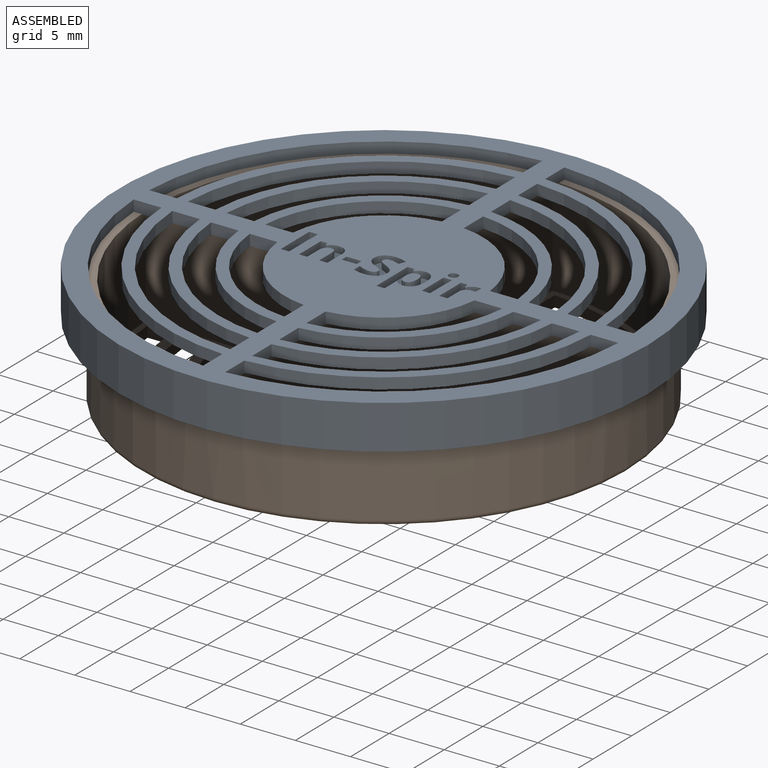
[diagram: assembled view]
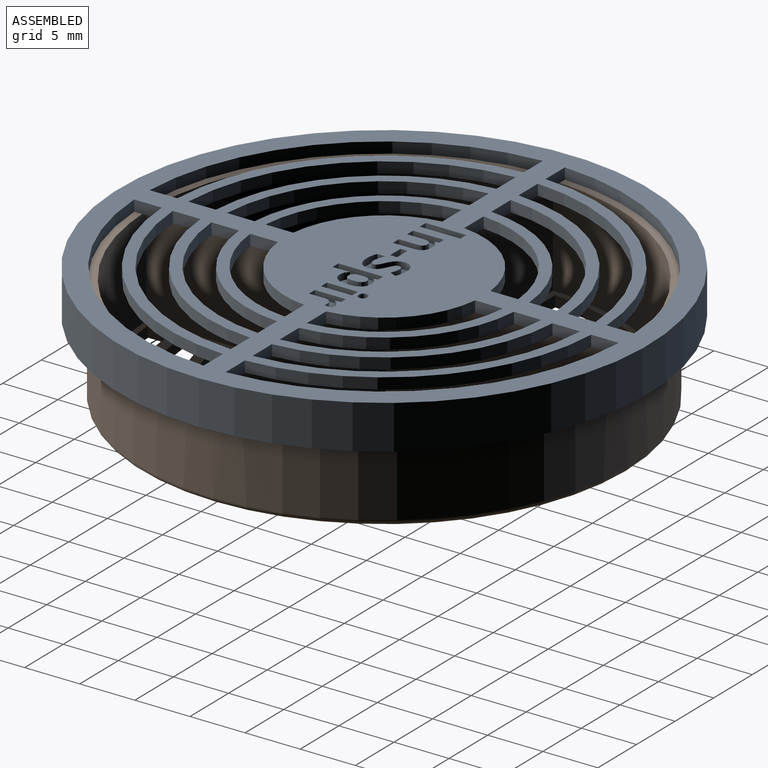
[diagram: assembled view, second angle]
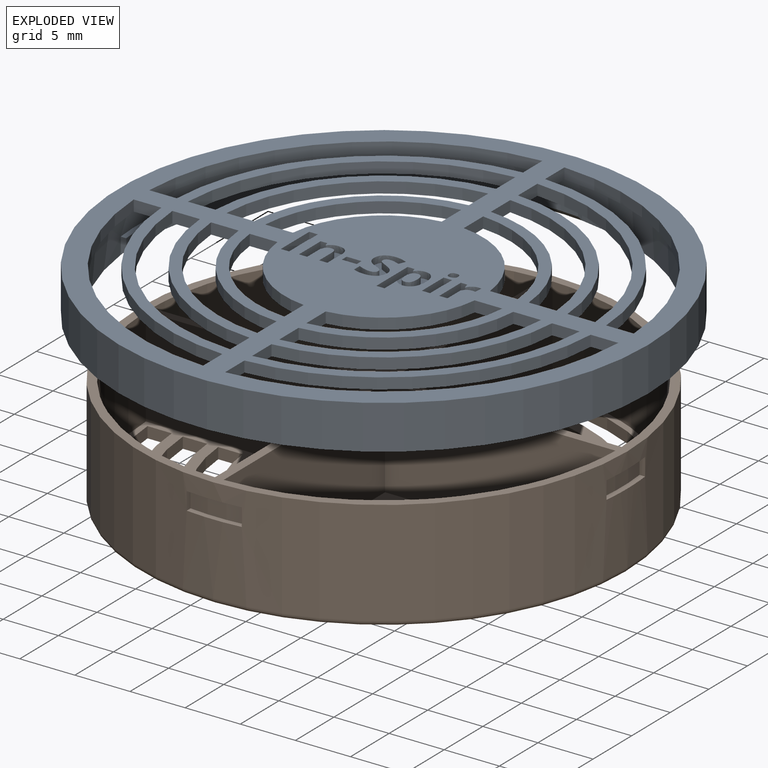
[diagram: exploded view]
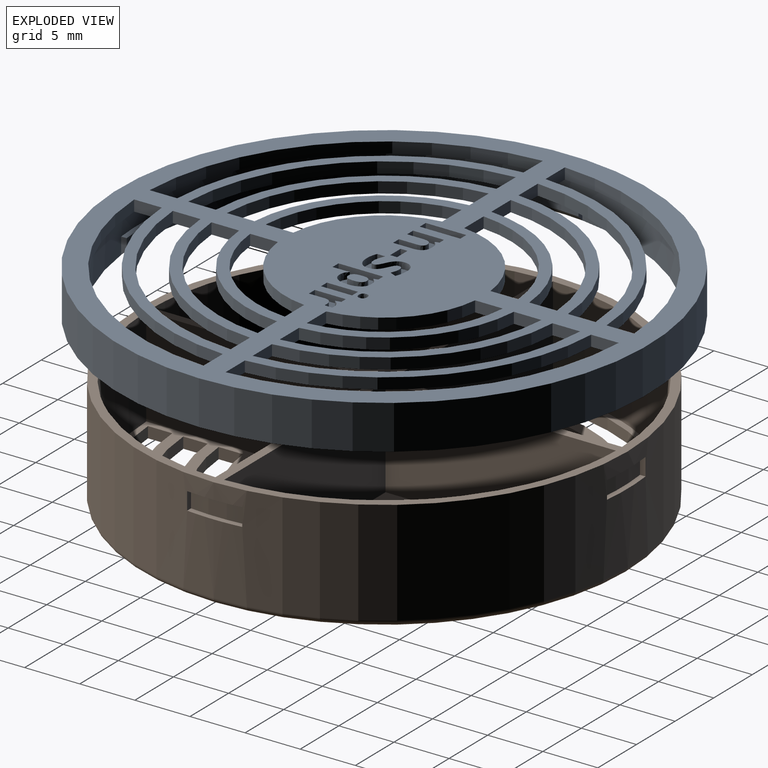
[diagram: exploded view, second angle]
ASSEMBLY  parts=2 mates=2
PART A: 196 faces, bbox 48x48x4 mm
  f0: cylinder r=22.25mm len=44.5mm, axis (0,0,1), area 389.3mm2, adj f2,f4,f176,f178,f179,f180,f182,f183
  f1: plane 48x48mm, normal (0,0,1), area 888.8mm2, adj f3,f5,f6,f7,f8,f9,f10,f11
  f2: plane 44.5x44.5mm, normal (0,0,-1), area 661.5mm2, adj f0,f5,f6,f7,f8,f9,f10,f11
  f3: cylinder r=24mm len=48mm, axis (0,0,-1), area 603.2mm2, adj f1,f4
  f4: plane 48x48mm, normal (0,0,-1), area 254.3mm2, adj f0,f3,f192,f193,f194,f195
  f5: plane 2.5x1mm, normal (-1,0,0), area 2.5mm2, adj f1,f2,f6,f8
  f6: cylinder r=22mm len=20.98mm, axis (0,0,1), area 32.6mm2, adj f1,f2,f5,f7
  f7: plane 2.5x1mm, normal (0,1,0), area 2.5mm2, adj f1,f2,f6,f8
  f8: cylinder r=19.5mm len=18.47mm, axis (0,0,1), area 28.6mm2, adj f1,f2,f5,f7
  f9: plane 2.51x1mm, normal (-1,0,0), area 2.5mm2, adj f1,f2,f10,f12
  f10: cylinder r=12.5mm len=11.46mm, axis (0,0,1), area 17.6mm2, adj f1,f2,f9,f11
  f11: plane 2.51x1mm, normal (0,-1,0), area 2.5mm2, adj f1,f2,f10,f12
  f12: cylinder r=15mm len=13.97mm, axis (0,0,1), area 21.6mm2, adj f1,f2,f9,f11
  f13: cylinder r=9mm len=7.94mm, axis (0,0,1), area 12.1mm2, adj f1,f2,f14,f16
  f14: plane 2.51x1mm, normal (1,0,0), area 2.5mm2, adj f1,f2,f13,f15
  f15: cylinder r=11.5mm len=10.46mm, axis (0,0,1), area 16.1mm2, adj f1,f2,f14,f16
  f16: plane 2.51x1mm, normal (0,-1,0), area 2.5mm2, adj f1,f2,f13,f15
  f17: cylinder r=16mm len=14.97mm, axis (0,0,1), area 23.1mm2, adj f1,f2,f18,f20
  f18: plane 2.5x1mm, normal (1,0,0), area 2.5mm2, adj f1,f2,f17,f19
  f19: cylinder r=18.5mm len=17.47mm, axis (0,0,1), area 27.1mm2, adj f1,f2,f18,f20
  f20: plane 2.5x1mm, normal (0,-1,0), area 2.5mm2, adj f1,f2,f17,f19
  f21: cylinder r=12.5mm len=11.46mm, axis (0,0,1), area 17.6mm2, adj f1,f2,f22,f24
  f22: plane 2.51x1mm, normal (1,0,0), area 2.5mm2, adj f1,f2,f21,f23
  f23: cylinder r=15mm len=13.97mm, axis (0,0,1), area 21.6mm2, adj f1,f2,f22,f24
  f24: plane 2.51x1mm, normal (0,-1,0), area 2.5mm2, adj f1,f2,f21,f23
  f25: plane 2.5x1mm, normal (-1,0,0), area 2.5mm2, adj f1,f2,f26,f28
  f26: cylinder r=16mm len=14.97mm, axis (0,0,1), area 23.1mm2, adj f1,f2,f25,f27
  f27: plane 2.5x1mm, normal (0,-1,0), area 2.5mm2, adj f1,f2,f26,f28
  f28: cylinder r=18.5mm len=17.47mm, axis (0,0,1), area 27.1mm2, adj f1,f2,f25,f27
  f29: plane 2.5x1mm, normal (-1,0,0), area 2.5mm2, adj f1,f2,f30,f32
  f30: cylinder r=19.5mm len=18.47mm, axis (0,0,1), area 28.6mm2, adj f1,f2,f29,f31
  f31: plane 2.5x1mm, normal (0,-1,0), area 2.5mm2, adj f1,f2,f30,f32
  f32: cylinder r=22mm len=20.98mm, axis (0,0,1), area 32.6mm2, adj f1,f2,f29,f31
  f33: plane 2.51x1mm, normal (-1,0,0), area 2.5mm2, adj f1,f2,f34,f36
  f34: cylinder r=9mm len=7.94mm, axis (0,0,1), area 12.1mm2, adj f1,f2,f33,f35
  f35: plane 2.51x1mm, normal (0,-1,0), area 2.5mm2, adj f1,f2,f34,f36
  f36: cylinder r=11.5mm len=10.46mm, axis (0,0,1), area 16.1mm2, adj f1,f2,f33,f35
  f37: cylinder r=11.5mm len=10.46mm, axis (0,0,1), area 16.1mm2, adj f1,f2,f38,f40
  f38: plane 2.51x1mm, normal (1,0,0), area 2.5mm2, adj f1,f2,f37,f39
  f39: cylinder r=9mm len=7.94mm, axis (0,0,1), area 12.1mm2, adj f1,f2,f38,f40
  f40: plane 2.51x1mm, normal (0,1,0), area 2.5mm2, adj f1,f2,f37,f39
  f41: plane 2.51x1mm, normal (-1,0,0), area 2.5mm2, adj f1,f2,f42,f44
  f42: cylinder r=11.5mm len=10.46mm, axis (0,0,1), area 16.1mm2, adj f1,f2,f41,f43
  f43: plane 2.51x1mm, normal (0,1,0), area 2.5mm2, adj f1,f2,f42,f44
  f44: cylinder r=9mm len=7.94mm, axis (0,0,1), area 12.1mm2, adj f1,f2,f41,f43
  f45: plane 2.5x1mm, normal (-1,0,0), area 2.5mm2, adj f1,f2,f46,f48
  f46: cylinder r=18.5mm len=17.47mm, axis (0,0,1), area 27.1mm2, adj f1,f2,f45,f47
  f47: plane 2.5x1mm, normal (0,1,0), area 2.5mm2, adj f1,f2,f46,f48
  f48: cylinder r=16mm len=14.97mm, axis (0,0,1), area 23.1mm2, adj f1,f2,f45,f47
  f49: plane 2.51x1mm, normal (-1,0,0), area 2.5mm2, adj f1,f2,f50,f52
  f50: cylinder r=15mm len=13.97mm, axis (0,0,1), area 21.6mm2, adj f1,f2,f49,f51
  f51: plane 2.51x1mm, normal (0,1,0), area 2.5mm2, adj f1,f2,f50,f52
  f52: cylinder r=12.5mm len=11.46mm, axis (0,0,1), area 17.6mm2, adj f1,f2,f49,f51
  f53: cylinder r=19.5mm len=18.47mm, axis (0,0,1), area 28.6mm2, adj f1,f2,f54,f56
  f54: plane 2.5x1mm, normal (1,0,0), area 2.5mm2, adj f1,f2,f53,f55
  f55: cylinder r=22mm len=20.98mm, axis (0,0,1), area 32.6mm2, adj f1,f2,f54,f56
  f56: plane 2.5x1mm, normal (0,-1,0), area 2.5mm2, adj f1,f2,f53,f55
  f57: cylinder r=22mm len=20.98mm, axis (0,0,1), area 32.6mm2, adj f1,f2,f58,f60
  f58: plane 2.5x1mm, normal (1,0,0), area 2.5mm2, adj f1,f2,f57,f59
  f59: cylinder r=19.5mm len=18.47mm, axis (0,0,1), area 28.6mm2, adj f1,f2,f58,f60
  f60: plane 2.5x1mm, normal (0,1,0), area 2.5mm2, adj f1,f2,f57,f59
  f61: cylinder r=15mm len=13.97mm, axis (0,0,1), area 21.6mm2, adj f1,f2,f62,f64
  f62: plane 2.51x1mm, normal (1,0,0), area 2.5mm2, adj f1,f2,f61,f63
  f63: cylinder r=12.5mm len=11.46mm, axis (0,0,1), area 17.6mm2, adj f1,f2,f62,f64
  f64: plane 2.51x1mm, normal (0,1,0), area 2.5mm2, adj f1,f2,f61,f63
  f65: cylinder r=18.5mm len=17.47mm, axis (0,0,1), area 27.1mm2, adj f1,f2,f66,f68
  f66: plane 2.5x1mm, normal (1,0,0), area 2.5mm2, adj f1,f2,f65,f67
  f67: cylinder r=16mm len=14.97mm, axis (0,0,1), area 23.1mm2, adj f1,f2,f66,f68
  f68: plane 2.5x1mm, normal (0,1,0), area 2.5mm2, adj f1,f2,f65,f67
  f69: plane 0.77x0.6mm, normal (0,1,0), area 0.5mm2, adj f1,f70,f85,f86
  f70: plane 1.84x0.6mm, normal (-1,0,0), area 1.1mm2, adj f1,f69,f71,f86
  f71: extruded ~0.77x0.6mm, area 0.5mm2, adj f1,f70,f72,f86
  f72: extruded ~0.75x0.6mm, area 0.5mm2, adj f1,f71,f73,f86
  f73: extruded ~0.6x0.51mm, area 0.3mm2, adj f1,f72,f74,f86
  f74: extruded ~0.6x0.35mm, area 0.3mm2, adj f1,f73,f75,f86
  f75: plane 0.6x0.04mm, normal (0,-1,0), area 0mm2, adj f1,f74,f76,f86
  f76: plane 0.6x0.36mm, normal (-0.96,-0.28,0), area 0.2mm2, adj f1,f75,f77,f86
  f77: plane 0.6x0.59mm, normal (0,-1,0), area 0.4mm2, adj f1,f76,f78,f86
  f78: plane 2.82x0.6mm, normal (1,0,0), area 1.7mm2, adj f1,f77,f79,f86
  f79: plane 0.77x0.6mm, normal (0,1,0), area 0.5mm2, adj f1,f78,f80,f86
  f80: plane 1.32x0.6mm, normal (-1,0,0), area 0.8mm2, adj f1,f79,f81,f86
  f81: extruded ~0.71x0.6mm, area 0.4mm2, adj f1,f80,f82,f86
  f82: extruded ~0.6x0.47mm, area 0.3mm2, adj f1,f81,f83,f86
  f83: extruded ~0.6x0.35mm, area 0.2mm2, adj f1,f82,f84,f86
  f84: extruded ~0.6x0.46mm, area 0.3mm2, adj f1,f83,f85,f86
  f85: plane 1.64x0.6mm, normal (1,0,0), area 1mm2, adj f1,f69,f84,f86
  f86: plane 2.87x2.6mm, normal (0,0,1), area 4.8mm2, adj f69,f70,f71,f72,f73,f74,f75,f76
  f87: plane 0.63x0.6mm, normal (1,0,0), area 0.4mm2, adj f1,f88,f90,f91
  f88: plane 1.35x0.6mm, normal (0,1,0), area 0.8mm2, adj f1,f87,f89,f91
  f89: plane 0.63x0.6mm, normal (-1,0,0), area 0.4mm2, adj f1,f88,f90,f91
  f90: plane 1.35x0.6mm, normal (0,-1,0), area 0.8mm2, adj f1,f87,f89,f91
  f91: plane 1.35x0.63mm, normal (0,0,1), area 0.9mm2, adj f87,f88,f89,f90
  f92: extruded ~0.79x0.6mm, area 0.5mm2, adj f1,f93,f119,f120
  f93: extruded ~0.61x0.6mm, area 0.4mm2, adj f1,f92,f94,f120
  f94: extruded ~0.71x0.6mm, area 0.5mm2, adj f1,f93,f95,f120
  f95: extruded ~0.6x0.49mm, area 0.3mm2, adj f1,f94,f96,f120
  f96: extruded ~0.6x0.15mm, area 0.1mm2, adj f1,f95,f97,f120
  f97: extruded ~0.6x0.18mm, area 0.1mm2, adj f1,f96,f98,f120
  f98: extruded ~0.6x0.27mm, area 0.2mm2, adj f1,f97,f99,f120
  f99: extruded ~0.6x0.34mm, area 0.2mm2, adj f1,f98,f100,f120
  f100: extruded ~0.6x0.38mm, area 0.2mm2, adj f1,f99,f101,f120
  f101: extruded ~0.6x0.49mm, area 0.3mm2, adj f1,f100,f102,f120
  f102: plane 0.61x0.6mm, normal (-0.92,0.38,0), area 0.4mm2, adj f1,f101,f103,f120
  f103: extruded ~0.6x0.55mm, area 0.3mm2, adj f1,f102,f104,f120
  f104: extruded ~0.6x0.55mm, area 0.3mm2, adj f1,f103,f105,f120
  f105: extruded ~0.92x0.6mm, area 0.6mm2, adj f1,f104,f106,f120
  f106: extruded ~0.77x0.6mm, area 0.5mm2, adj f1,f105,f107,f120
  f107: extruded ~0.6x0.45mm, area 0.3mm2, adj f1,f106,f108,f120
  f108: extruded ~0.6x0.34mm, area 0.3mm2, adj f1,f107,f109,f120
  f109: extruded ~0.6x0.51mm, area 0.4mm2, adj f1,f108,f110,f120
  f110: extruded ~0.6x0.48mm, area 0.3mm2, adj f1,f109,f111,f120
  f111: extruded ~0.6x0.18mm, area 0.1mm2, adj f1,f110,f112,f120
  f112: extruded ~0.6x0.19mm, area 0.1mm2, adj f1,f111,f113,f120
  f113: extruded ~0.6x0.29mm, area 0.2mm2, adj f1,f112,f114,f120
  f114: extruded ~0.6x0.39mm, area 0.2mm2, adj f1,f113,f115,f120
  f115: extruded ~0.6x0.47mm, area 0.3mm2, adj f1,f114,f116,f120
  f116: extruded ~0.63x0.6mm, area 0.4mm2, adj f1,f115,f117,f120
  f117: plane 0.73x0.6mm, normal (1,0,0), area 0.4mm2, adj f1,f116,f118,f120
  f118: extruded ~1.04x0.6mm, area 0.6mm2, adj f1,f117,f119,f120
  f119: extruded ~1x0.6mm, area 0.6mm2, adj f1,f92,f118,f120
  f120: plane 3.78x2.4mm, normal (0,0,1), area 5.1mm2, adj f92,f93,f94,f95,f96,f97,f98,f99
  f121: extruded ~0.6x0.42mm, area 0.4mm2, adj f1,f122,f125,f126
  f122: extruded ~0.6x0.42mm, area 0.4mm2, adj f1,f121,f123,f126
  f123: extruded ~0.6x0.31mm, area 0.2mm2, adj f1,f122,f124,f126
  f124: extruded ~0.6x0.28mm, area 0.2mm2, adj f1,f123,f125,f126
  f125: extruded ~0.6x0.42mm, area 0.4mm2, adj f1,f121,f124,f126
  f126: plane 0.84x0.75mm, normal (0,0,1), area 0.5mm2, adj f121,f122,f123,f124,f125
  f127: plane 0.77x0.6mm, normal (0,1,0), area 0.5mm2, adj f1,f128,f130,f131
  f128: plane 2.82x0.6mm, normal (-1,0,0), area 1.7mm2, adj f1,f127,f129,f131
  f129: plane 0.77x0.6mm, normal (0,-1,0), area 0.5mm2, adj f1,f128,f130,f131
  f130: plane 2.82x0.6mm, normal (1,0,0), area 1.7mm2, adj f1,f127,f129,f131
  f131: plane 2.82x0.77mm, normal (0,0,1), area 2.2mm2, adj f127,f128,f129,f130
  f132: extruded ~0.6x0.26mm, area 0.2mm2, adj f1,f133,f144,f145
  f133: extruded ~0.6x0.48mm, area 0.3mm2, adj f1,f132,f134,f145
  f134: extruded ~0.6x0.38mm, area 0.3mm2, adj f1,f133,f135,f145
  f135: plane 0.6x0.04mm, normal (0,-1,0), area 0mm2, adj f1,f134,f136,f145
  f136: plane 0.6x0.47mm, normal (-0.97,-0.23,0), area 0.3mm2, adj f1,f135,f137,f145
  f137: plane 0.6x0.58mm, normal (0,-1,0), area 0.3mm2, adj f1,f136,f138,f145
  f138: plane 2.82x0.6mm, normal (1,0,0), area 1.7mm2, adj f1,f137,f139,f145
  f139: plane 0.77x0.6mm, normal (0,1,0), area 0.5mm2, adj f1,f138,f140,f145
  f140: plane 1.43x0.6mm, normal (-1,0,0), area 0.9mm2, adj f1,f139,f141,f145
  f141: extruded ~0.6x0.53mm, area 0.4mm2, adj f1,f140,f142,f145
  f142: extruded ~0.6x0.57mm, area 0.4mm2, adj f1,f141,f143,f145
  f143: extruded ~0.6x0.23mm, area 0.1mm2, adj f1,f142,f144,f145
  f144: plane 0.72x0.6mm, normal (-1,0.08,0), area 0.4mm2, adj f1,f132,f143,f145
  f145: plane 2.87x1.83mm, normal (0,0,1), area 2.8mm2, adj f132,f133,f134,f135,f136,f137,f138,f139
  f146: extruded ~0.6x0.42mm, area 0.3mm2, adj f147,f168,f169,f175
  f147: extruded ~0.6x0.4mm, area 0.3mm2, adj f146,f148,f169,f175
  f148: extruded ~0.62x0.6mm, area 0.4mm2, adj f147,f149,f169,f175
  f149: extruded ~0.85x0.6mm, area 0.7mm2, adj f148,f150,f169,f175
  f150: extruded ~0.6x0.43mm, area 0.3mm2, adj f149,f151,f169,f175
  f151: extruded ~0.65x0.6mm, area 0.4mm2, adj f150,f152,f169,f175
  f152: plane 0.6x0.08mm, normal (-1,0,0), area 0.1mm2, adj f151,f168,f169,f175
  f153: extruded ~0.78x0.6mm, area 0.5mm2, adj f1,f154,f167,f169
  f154: extruded ~0.6x0.57mm, area 0.4mm2, adj f1,f153,f155,f169
  f155: extruded ~0.6x0.51mm, area 0.4mm2, adj f1,f154,f156,f169
  f156: extruded ~0.78x0.6mm, area 0.5mm2, adj f1,f155,f157,f169
  f157: extruded ~1.07x0.6mm, area 0.7mm2, adj f1,f156,f158,f169
  f158: extruded ~0.78x0.6mm, area 0.5mm2, adj f1,f157,f159,f169
  f159: extruded ~0.8x0.6mm, area 0.6mm2, adj f1,f158,f160,f169
  f160: plane 0.6x0.04mm, normal (0,-1,0), area 0mm2, adj f1,f159,f161,f169
  f161: plane 0.6x0.37mm, normal (-0.96,-0.28,0), area 0.2mm2, adj f1,f160,f162,f169
  f162: plane 0.62x0.6mm, normal (0,-1,0), area 0.4mm2, adj f1,f161,f163,f169
  f163: plane 4.05x0.6mm, normal (1,0,0), area 2.4mm2, adj f1,f162,f164,f169
  f164: plane 0.77x0.6mm, normal (0,1,0), area 0.5mm2, adj f1,f163,f165,f169
  f165: plane 1.14x0.6mm, normal (-1,0,0), area 0.7mm2, adj f1,f164,f166,f169
  f166: extruded ~0.6x0.41mm, area 0.2mm2, adj f1,f165,f167,f169
  f167: plane 0.6x0.04mm, normal (0,1,0), area 0mm2, adj f1,f153,f166,f169
  f168: extruded ~0.6x0.58mm, area 0.4mm2, adj f146,f152,f169,f175
  f169: plane 4.11x2.63mm, normal (0,0,1), area 6.2mm2, adj f146,f147,f148,f149,f150,f151,f152,f153
  f170: plane 3.68x0.6mm, normal (1,0,0), area 2.2mm2, adj f1,f171,f173,f174
  f171: plane 0.78x0.6mm, normal (0,1,0), area 0.5mm2, adj f1,f170,f172,f174
  f172: plane 3.68x0.6mm, normal (-1,0,0), area 2.2mm2, adj f1,f171,f173,f174
  f173: plane 0.78x0.6mm, normal (0,-1,0), area 0.5mm2, adj f1,f170,f172,f174
  f174: plane 3.68x0.78mm, normal (0,0,1), area 2.9mm2, adj f170,f171,f172,f173
  f175: plane 1.68x1.08mm, normal (0,0,1), area 1.5mm2, adj f146,f147,f148,f149,f150,f151,f152,f168
  f176: plane 1.5x0.5mm, normal (0,1,0), area 0.6mm2, adj f0,f177,f179,f195
  f177: cylinder r=21.75mm len=5mm, axis (0,0,-1), area 5mm2, adj f176,f178,f179,f195
  f178: plane 1.5x0.5mm, normal (0,-1,0), area 0.6mm2, adj f0,f177,f179,f195
  f179: plane 5x0.64mm, normal (0,0,1), area 2.5mm2, adj f0,f176,f177,f178
  f180: plane 1.5x0.5mm, normal (1,0,0), area 0.6mm2, adj f0,f181,f183,f192
  f181: cylinder r=21.75mm len=5mm, axis (0,0,-1), area 5mm2, adj f180,f182,f183,f192
  f182: plane 1.5x0.5mm, normal (-1,0,0), area 0.6mm2, adj f0,f181,f183,f192
  f183: plane 5x0.64mm, normal (0,0,1), area 2.5mm2, adj f0,f180,f181,f182
  f184: plane 1.5x0.5mm, normal (0,-1,0), area 0.6mm2, adj f0,f185,f187,f193
  f185: cylinder r=21.75mm len=5mm, axis (0,0,-1), area 5mm2, adj f184,f186,f187,f193
  f186: plane 1.5x0.5mm, normal (0,1,0), area 0.6mm2, adj f0,f185,f187,f193
  f187: plane 5x0.64mm, normal (0,0,1), area 2.5mm2, adj f0,f184,f185,f186
  f188: plane 1.5x0.5mm, normal (-1,0,0), area 0.6mm2, adj f0,f189,f191,f194
  f189: cylinder r=21.75mm len=5mm, axis (0,0,-1), area 5mm2, adj f188,f190,f191,f194
  f190: plane 1.5x0.5mm, normal (1,0,0), area 0.6mm2, adj f0,f189,f191,f194
  f191: plane 5x0.64mm, normal (0,0,1), area 2.5mm2, adj f0,f188,f189,f190
  f192: cone r=22.25mm half-angle=45deg, axis (0,0,-1), area 3.5mm2, adj f4,f180,f181,f182
  f193: cone r=22.25mm half-angle=45deg, axis (0,0,-1), area 3.5mm2, adj f4,f184,f185,f186
  f194: cone r=22.25mm half-angle=45deg, axis (0,0,-1), area 3.5mm2, adj f4,f188,f189,f190
  f195: cone r=22.25mm half-angle=45deg, axis (0,0,-1), area 3.5mm2, adj f4,f176,f177,f178
PART B: 120 faces, bbox 47.8x47.8x10 mm
  f0: cylinder r=22.1mm len=44.2mm, axis (0,0,-1), area 1287.1mm2, adj f10,f99,f101,f102,f103,f104,f106,f107
  f1: plane 20.94x20.94mm, normal (0,0,1), area 132.6mm2, adj f6,f15,f16,f17,f18,f59,f60,f61
  f2: plane 20.94x20.94mm, normal (0,0,1), area 132.5mm2, adj f5,f27,f28,f29,f30,f31,f32,f33
  f3: plane 20.94x20.94mm, normal (0,0,1), area 132.6mm2, adj f4,f23,f24,f25,f26,f35,f36,f37
  f4: cylinder r=21.3mm len=20.9mm, axis (0,0,1), area 293.9mm2, adj f3,f10,f93,f94
  f5: cylinder r=21.3mm len=20.9mm, axis (0,0,1), area 293.9mm2, adj f2,f10,f95,f96
  f6: cylinder r=21.3mm len=20.9mm, axis (0,0,1), area 293.9mm2, adj f1,f10,f97,f98
  f7: cylinder r=21.3mm len=20.9mm, axis (0,0,1), area 293.9mm2, adj f9,f10,f91,f92
  f8: plane 43.2x43.2mm, normal (0,0,-1), area 638.1mm2, adj f11,f12,f13,f14,f15,f16,f17,f18
  f9: plane 20.94x20.94mm, normal (0,0,1), area 132.6mm2, adj f7,f11,f12,f13,f14,f19,f20,f21
  f10: plane 44.2x44.2mm, normal (0,0,1), area 176.6mm2, adj f0,f4,f5,f6,f7,f91,f92,f93
  f11: plane 2.2x1mm, normal (-1,0,0), area 2.2mm2, adj f8,f9,f12,f14
  f12: cylinder r=20.75mm len=19.73mm, axis (0,0,-1), area 30.6mm2, adj f8,f9,f11,f13
  f13: plane 2.2x1mm, normal (0,-1,0), area 2.2mm2, adj f8,f9,f12,f14
  f14: cylinder r=18.55mm len=17.52mm, axis (0,0,-1), area 27.1mm2, adj f8,f9,f11,f13
  f15: plane 2.2x1mm, normal (-1,0,0), area 2.2mm2, adj f1,f8,f16,f18
  f16: cylinder r=15.35mm len=14.32mm, axis (0,0,-1), area 22.1mm2, adj f1,f8,f15,f17
  f17: plane 2.2x1mm, normal (0,1,0), area 2.2mm2, adj f1,f8,f16,f18
  f18: cylinder r=17.55mm len=16.52mm, axis (0,0,-1), area 25.6mm2, adj f1,f8,f15,f17
  f19: plane 2.2x1mm, normal (-1,0,0), area 2.2mm2, adj f8,f9,f20,f22
  f20: cylinder r=17.55mm len=16.52mm, axis (0,0,-1), area 25.6mm2, adj f8,f9,f19,f21
  f21: plane 2.2x1mm, normal (0,-1,0), area 2.2mm2, adj f8,f9,f20,f22
  f22: cylinder r=15.35mm len=14.32mm, axis (0,0,-1), area 22.1mm2, adj f8,f9,f19,f21
  f23: cylinder r=7.95mm len=6.89mm, axis (0,0,-1), area 10.5mm2, adj f3,f8,f24,f26
  f24: plane 2.22x1mm, normal (1,0,0), area 2.2mm2, adj f3,f8,f23,f25
  f25: cylinder r=5.75mm len=4.66mm, axis (0,0,-1), area 7mm2, adj f3,f8,f24,f26
  f26: plane 2.22x1mm, normal (0,-1,0), area 2.2mm2, adj f3,f8,f23,f25
  f27: cylinder r=18.55mm len=17.52mm, axis (0,0,-1), area 27.1mm2, adj f2,f8,f28,f30
  f28: plane 2.2x1mm, normal (1,0,0), area 2.2mm2, adj f2,f8,f27,f29
  f29: cylinder r=20.75mm len=19.73mm, axis (0,0,-1), area 30.6mm2, adj f2,f8,f28,f30
  f30: plane 2.2x1mm, normal (0,1,0), area 2.2mm2, adj f2,f8,f27,f29
  f31: cylinder r=15.35mm len=14.32mm, axis (0,0,-1), area 22.1mm2, adj f2,f8,f32,f34
  f32: plane 2.2x1mm, normal (1,0,0), area 2.2mm2, adj f2,f8,f31,f33
  f33: cylinder r=17.55mm len=16.52mm, axis (0,0,-1), area 25.6mm2, adj f2,f8,f32,f34
  f34: plane 2.2x1mm, normal (0,1,0), area 2.2mm2, adj f2,f8,f31,f33
  f35: cylinder r=17.55mm len=16.52mm, axis (0,0,-1), area 25.6mm2, adj f3,f8,f36,f38
  f36: plane 2.2x1mm, normal (1,0,0), area 2.2mm2, adj f3,f8,f35,f37
  f37: cylinder r=15.35mm len=14.32mm, axis (0,0,-1), area 22.1mm2, adj f3,f8,f36,f38
  f38: plane 2.2x1mm, normal (0,-1,0), area 2.2mm2, adj f3,f8,f35,f37
  f39: cylinder r=20.75mm len=19.73mm, axis (0,0,-1), area 30.6mm2, adj f3,f8,f40,f42
  f40: plane 2.2x1mm, normal (1,0,0), area 2.2mm2, adj f3,f8,f39,f41
  f41: cylinder r=18.55mm len=17.52mm, axis (0,0,-1), area 27.1mm2, adj f3,f8,f40,f42
  f42: plane 2.2x1mm, normal (0,-1,0), area 2.2mm2, adj f3,f8,f39,f41
  f43: cylinder r=11.15mm len=10.11mm, axis (0,0,-1), area 15.5mm2, adj f3,f8,f44,f46
  f44: plane 2.21x1mm, normal (1,0,0), area 2.2mm2, adj f3,f8,f43,f45
  f45: cylinder r=8.95mm len=7.89mm, axis (0,0,-1), area 12.1mm2, adj f3,f8,f44,f46
  f46: plane 2.21x1mm, normal (0,-1,0), area 2.2mm2, adj f3,f8,f43,f45
  f47: cylinder r=14.35mm len=13.32mm, axis (0,0,-1), area 20.5mm2, adj f3,f8,f48,f50
  f48: plane 2.21x1mm, normal (1,0,0), area 2.2mm2, adj f3,f8,f47,f49
  f49: cylinder r=12.15mm len=11.11mm, axis (0,0,-1), area 17.1mm2, adj f3,f8,f48,f50
  f50: plane 2.21x1mm, normal (0,-1,0), area 2.2mm2, adj f3,f8,f47,f49
  f51: plane 2.21x1mm, normal (-1,0,0), area 2.2mm2, adj f8,f9,f52,f54
  f52: cylinder r=14.35mm len=13.32mm, axis (0,0,-1), area 20.5mm2, adj f8,f9,f51,f53
  f53: plane 2.21x1mm, normal (0,-1,0), area 2.2mm2, adj f8,f9,f52,f54
  f54: cylinder r=12.15mm len=11.11mm, axis (0,0,-1), area 17.1mm2, adj f8,f9,f51,f53
  f55: plane 2.21x1mm, normal (-1,0,0), area 2.2mm2, adj f8,f9,f56,f58
  f56: cylinder r=11.15mm len=10.11mm, axis (0,0,-1), area 15.5mm2, adj f8,f9,f55,f57
  f57: plane 2.21x1mm, normal (0,-1,0), area 2.2mm2, adj f8,f9,f56,f58
  f58: cylinder r=8.95mm len=7.89mm, axis (0,0,-1), area 12.1mm2, adj f8,f9,f55,f57
  f59: plane 2.2x1mm, normal (-1,0,0), area 2.2mm2, adj f1,f8,f60,f62
  f60: cylinder r=18.55mm len=17.52mm, axis (0,0,-1), area 27.1mm2, adj f1,f8,f59,f61
  f61: plane 2.2x1mm, normal (0,1,0), area 2.2mm2, adj f1,f8,f60,f62
  f62: cylinder r=20.75mm len=19.73mm, axis (0,0,-1), area 30.6mm2, adj f1,f8,f59,f61
  f63: plane 2.22x1mm, normal (-1,0,0), area 2.2mm2, adj f8,f9,f64,f66
  f64: cylinder r=7.95mm len=6.89mm, axis (0,0,-1), area 10.5mm2, adj f8,f9,f63,f65
  f65: plane 2.22x1mm, normal (0,-1,0), area 2.2mm2, adj f8,f9,f64,f66
  f66: cylinder r=5.75mm len=4.66mm, axis (0,0,-1), area 7mm2, adj f8,f9,f63,f65
  f67: plane 2.22x1mm, normal (-1,0,0), area 2.2mm2, adj f1,f8,f68,f70
  f68: cylinder r=5.75mm len=4.66mm, axis (0,0,-1), area 7mm2, adj f1,f8,f67,f69
  f69: plane 2.22x1mm, normal (0,1,0), area 2.2mm2, adj f1,f8,f68,f70
  f70: cylinder r=7.95mm len=6.89mm, axis (0,0,-1), area 10.5mm2, adj f1,f8,f67,f69
  f71: cylinder r=5.75mm len=4.66mm, axis (0,0,-1), area 7mm2, adj f2,f8,f72,f74
  f72: plane 2.22x1mm, normal (1,0,0), area 2.2mm2, adj f2,f8,f71,f73
  f73: cylinder r=7.95mm len=6.89mm, axis (0,0,-1), area 10.5mm2, adj f2,f8,f72,f74
  f74: plane 2.22x1mm, normal (0,1,0), area 2.2mm2, adj f2,f8,f71,f73
  f75: cylinder r=12.15mm len=11.11mm, axis (0,0,-1), area 17.1mm2, adj f2,f8,f76,f78
  f76: plane 2.21x1mm, normal (1,0,0), area 2.2mm2, adj f2,f8,f75,f77
  f77: cylinder r=14.35mm len=13.32mm, axis (0,0,-1), area 20.5mm2, adj f2,f8,f76,f78
  f78: plane 2.21x1mm, normal (0,1,0), area 2.2mm2, adj f2,f8,f75,f77
  f79: plane 2.21x1mm, normal (-1,0,0), area 2.2mm2, adj f1,f8,f80,f82
  f80: cylinder r=8.95mm len=7.89mm, axis (0,0,-1), area 12.1mm2, adj f1,f8,f79,f81
  f81: plane 2.21x1mm, normal (0,1,0), area 2.2mm2, adj f1,f8,f80,f82
  f82: cylinder r=11.15mm len=10.11mm, axis (0,0,-1), area 15.5mm2, adj f1,f8,f79,f81
  f83: cylinder r=8.95mm len=7.89mm, axis (0,0,-1), area 12.1mm2, adj f2,f8,f84,f86
  f84: plane 2.21x1mm, normal (1,0,0), area 2.2mm2, adj f2,f8,f83,f85
  f85: cylinder r=11.15mm len=10.11mm, axis (0,0,-1), area 15.5mm2, adj f2,f8,f84,f86
  f86: plane 2.21x1mm, normal (0,1,0), area 2.2mm2, adj f2,f8,f83,f85
  f87: plane 2.21x1mm, normal (-1,0,0), area 2.2mm2, adj f1,f8,f88,f90
  f88: cylinder r=12.15mm len=11.11mm, axis (0,0,-1), area 17.1mm2, adj f1,f8,f87,f89
  f89: plane 2.21x1mm, normal (0,1,0), area 2.2mm2, adj f1,f8,f88,f90
  f90: cylinder r=14.35mm len=13.32mm, axis (0,0,-1), area 20.5mm2, adj f1,f8,f87,f89
  f91: plane 20.91x9.01mm, normal (0,-1,0), area 188.1mm2, adj f7,f9,f10,f92
  f92: plane 20.91x9.01mm, normal (-1,0,0), area 188.1mm2, adj f7,f9,f10,f91
  f93: plane 20.91x9.01mm, normal (1,0,0), area 188.1mm2, adj f3,f4,f10,f94
  f94: plane 20.91x9.01mm, normal (0,-1,0), area 188.1mm2, adj f3,f4,f10,f93
  f95: plane 20.91x9.01mm, normal (0,1,0), area 188.1mm2, adj f2,f5,f10,f96
  f96: plane 20.91x9.01mm, normal (1,0,0), area 188.1mm2, adj f2,f5,f10,f95
  f97: plane 20.91x9.01mm, normal (-1,0,0), area 188.1mm2, adj f1,f6,f10,f98
  f98: plane 20.91x9.01mm, normal (0,1,0), area 188.1mm2, adj f1,f6,f10,f97
  f99: plane 1.6x0.5mm, normal (1,0,0), area 0.8mm2, adj f0,f100,f102,f103
  f100: cylinder r=21.6mm len=5mm, axis (0,0,1), area 8mm2, adj f99,f101,f102,f103
  f101: plane 1.6x0.5mm, normal (-1,0,0), area 0.8mm2, adj f0,f100,f102,f103
  f102: plane 5x0.65mm, normal (0,0,1), area 2.5mm2, adj f0,f99,f100,f101
  f103: plane 5x0.65mm, normal (0,0,-1), area 2.5mm2, adj f0,f99,f100,f101
  f104: plane 1.6x0.5mm, normal (0,-1,0), area 0.8mm2, adj f0,f105,f107,f108
  f105: cylinder r=21.6mm len=5mm, axis (0,0,1), area 8mm2, adj f104,f106,f107,f108
  f106: plane 1.6x0.5mm, normal (0,1,0), area 0.8mm2, adj f0,f105,f107,f108
  f107: plane 5x0.65mm, normal (0,0,1), area 2.5mm2, adj f0,f104,f105,f106
  f108: plane 5x0.65mm, normal (0,0,-1), area 2.5mm2, adj f0,f104,f105,f106
  f109: plane 1.6x0.5mm, normal (-1,0,0), area 0.8mm2, adj f0,f110,f112,f113
  f110: cylinder r=21.6mm len=5mm, axis (0,0,1), area 8mm2, adj f109,f111,f112,f113
  f111: plane 1.6x0.5mm, normal (1,0,0), area 0.8mm2, adj f0,f110,f112,f113
  f112: plane 5x0.65mm, normal (0,0,1), area 2.5mm2, adj f0,f109,f110,f111
  f113: plane 5x0.65mm, normal (0,0,-1), area 2.5mm2, adj f0,f109,f110,f111
  f114: plane 1.6x0.5mm, normal (0,1,0), area 0.8mm2, adj f0,f115,f117,f118
  f115: cylinder r=21.6mm len=5mm, axis (0,0,1), area 8mm2, adj f114,f116,f117,f118
  f116: plane 1.6x0.5mm, normal (0,-1,0), area 0.8mm2, adj f0,f115,f117,f118
  f117: plane 5x0.65mm, normal (0,0,1), area 2.5mm2, adj f0,f114,f115,f116
  f118: plane 5x0.65mm, normal (0,0,-1), area 2.5mm2, adj f0,f114,f115,f116
  f119: torus R=21.6mm, axis (0,0,1), area 108.2mm2, adj f0,f8
PLACE A t=(7.54,6.39,6.98)mm
PLACE B t=(7.54,6.39,-3.02)mm
MATE planar B.f100 <-> A.f2  axis (0,0,1) through (7.54,6.39,6.98)mm
MATE cylindrical A.f3 <-> B.f0  axis (0,0,1) through (7.54,6.39,7.98)mm
